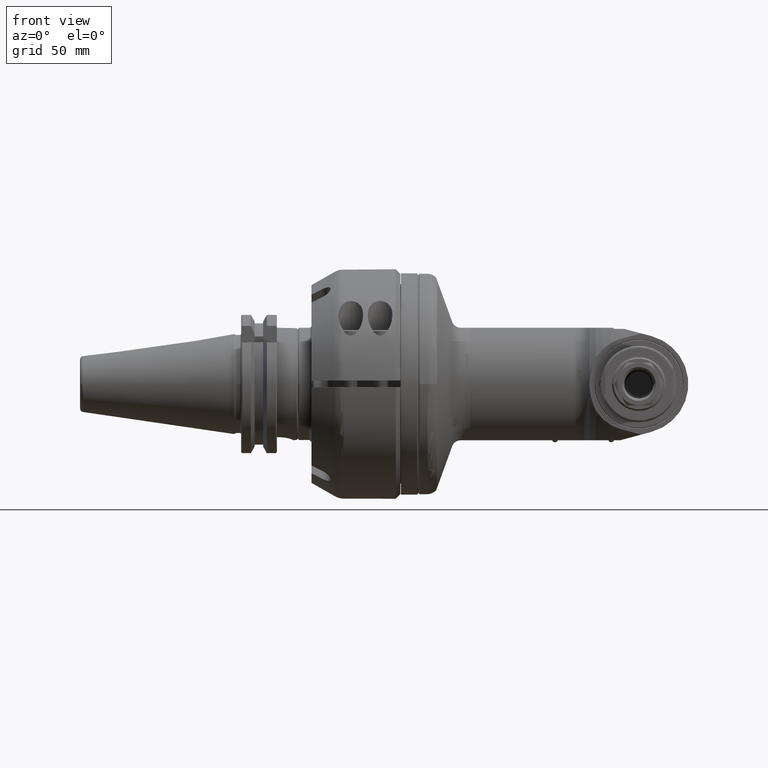
[diagram: clean part render]
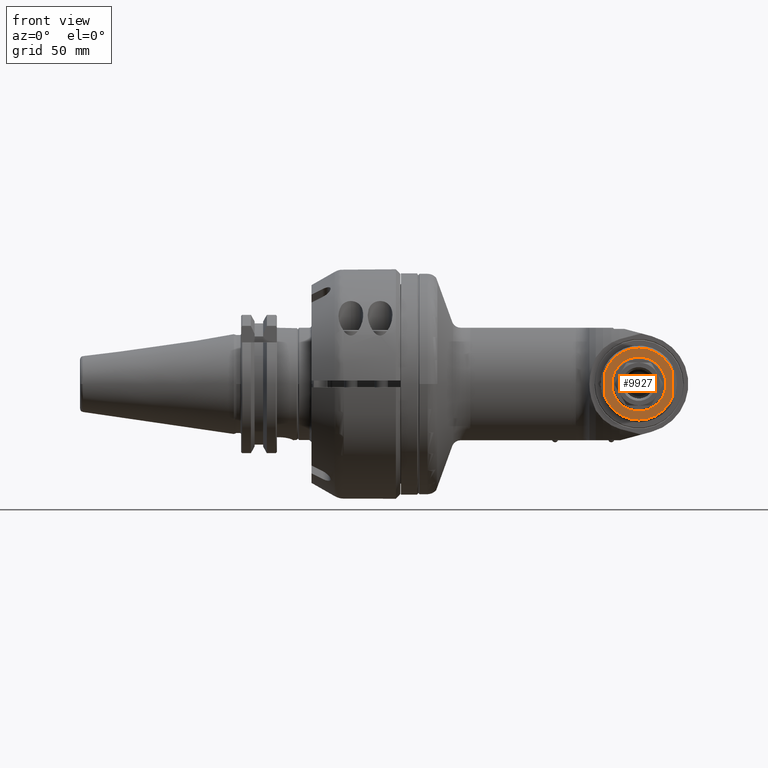
[diagram: same view with one face highlighted and labeled with its STEP entity id]
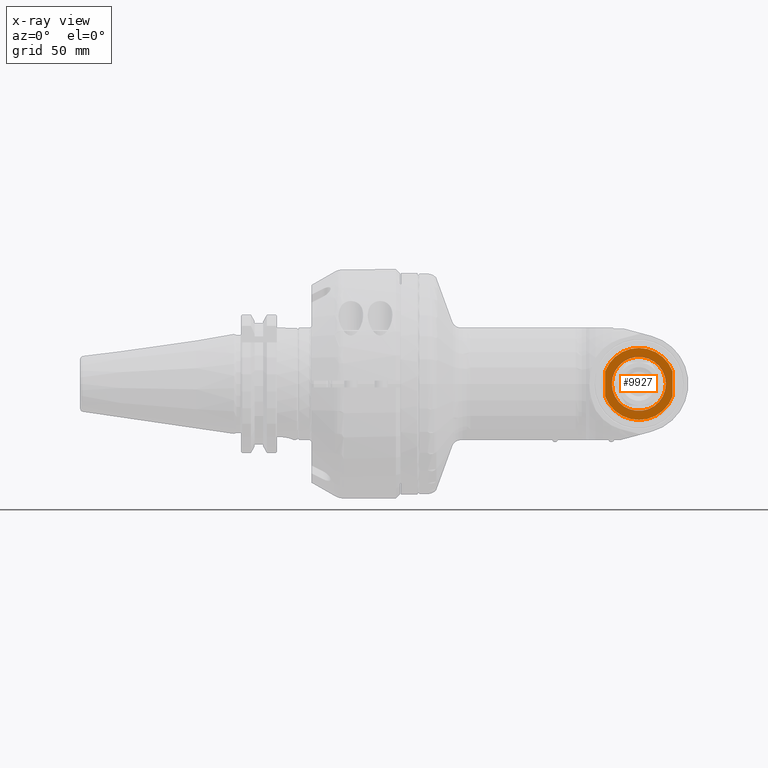
[diagram: x-ray of the same camera — body ghosted, the highlighted face saturated]
A machine part, front view. The second image highlights one B-rep face of the part: STEP entity #9927.
The next image is the same camera in x-ray: the body ghosted, the highlighted face saturated — about 0% of this face is hidden behind the body in this view.
In plain terms, the highlighted planar face has unit normal (-0, -1, -0).
Its self-contained STEP definition (entity closure, byte-faithful):
#393=FACE_BOUND('',#2835,.T.);
#686=LINE('',#14996,#1359);
#687=LINE('',#14999,#1360);
#1359=VECTOR('',#11952,11.13552872566);
#1360=VECTOR('',#11955,11.13552872566);
#2202=FACE_OUTER_BOUND('',#2834,.T.);
#2834=EDGE_LOOP('',(#6761,#6762,#6763,#6764));
#2835=EDGE_LOOP('',(#6765));
#3561=CIRCLE('',#10650,12.);
#3562=CIRCLE('',#10652,16.);
#3563=CIRCLE('',#10653,16.);
#4119=VERTEX_POINT('',#14988);
#4120=VERTEX_POINT('',#14992);
#4121=VERTEX_POINT('',#14993);
#4122=VERTEX_POINT('',#14995);
#4123=VERTEX_POINT('',#14997);
#5155=EDGE_CURVE('',#4119,#4119,#3561,.T.);
#5157=EDGE_CURVE('',#4120,#4121,#3562,.T.);
#5158=EDGE_CURVE('',#4121,#4122,#686,.T.);
#5159=EDGE_CURVE('',#4122,#4123,#3563,.T.);
#5160=EDGE_CURVE('',#4120,#4123,#687,.T.);
#6761=ORIENTED_EDGE('',*,*,#5157,.T.);
#6762=ORIENTED_EDGE('',*,*,#5158,.T.);
#6763=ORIENTED_EDGE('',*,*,#5159,.T.);
#6764=ORIENTED_EDGE('',*,*,#5160,.F.);
#6765=ORIENTED_EDGE('',*,*,#5155,.T.);
#9636=PLANE('',#10651);
#9927=ADVANCED_FACE('',(#2202,#393),#9636,.T.);
#10650=AXIS2_PLACEMENT_3D('',#14989,#11945,#11946);
#10651=AXIS2_PLACEMENT_3D('',#14991,#11948,#11949);
#10652=AXIS2_PLACEMENT_3D('',#14994,#11950,#11951);
#10653=AXIS2_PLACEMENT_3D('',#14998,#11953,#11954);
#11945=DIRECTION('center_axis',(0.,1.,0.));
#11946=DIRECTION('ref_axis',(-1.,0.,0.));
#11948=DIRECTION('center_axis',(0.,-1.,0.));
#11949=DIRECTION('ref_axis',(0.,0.,1.));
#11950=DIRECTION('center_axis',(0.,-1.,0.));
#11951=DIRECTION('ref_axis',(0.937499999999992,0.,0.347985272676897));
#11952=DIRECTION('',(0.,0.,-1.));
#11953=DIRECTION('center_axis',(0.,-1.,0.));
#11954=DIRECTION('ref_axis',(-0.937499999999992,0.,-0.347985272676897));
#11955=DIRECTION('',(0.,0.,-1.));
#14988=CARTESIAN_POINT('',(97.99999995534,-47.,0.));
#14989=CARTESIAN_POINT('Origin',(109.9999999553,-47.,0.));
#14991=CARTESIAN_POINT('Origin',(109.9999999553,-47.,-8.5));
#14992=CARTESIAN_POINT('',(124.9999999553,-47.,5.56776436283));
#14993=CARTESIAN_POINT('',(94.99999995534,-47.,5.56776436283));
#14994=CARTESIAN_POINT('Origin',(109.9999999553,-47.,0.));
#14995=CARTESIAN_POINT('',(94.99999995534,-47.,-5.56776436283));
#14996=CARTESIAN_POINT('',(94.99999995534,-47.,5.56776436283));
#14997=CARTESIAN_POINT('',(124.9999999553,-47.,-5.56776436283));
#14998=CARTESIAN_POINT('Origin',(109.9999999553,-47.,0.));
#14999=CARTESIAN_POINT('',(124.9999999553,-47.,5.56776436283));